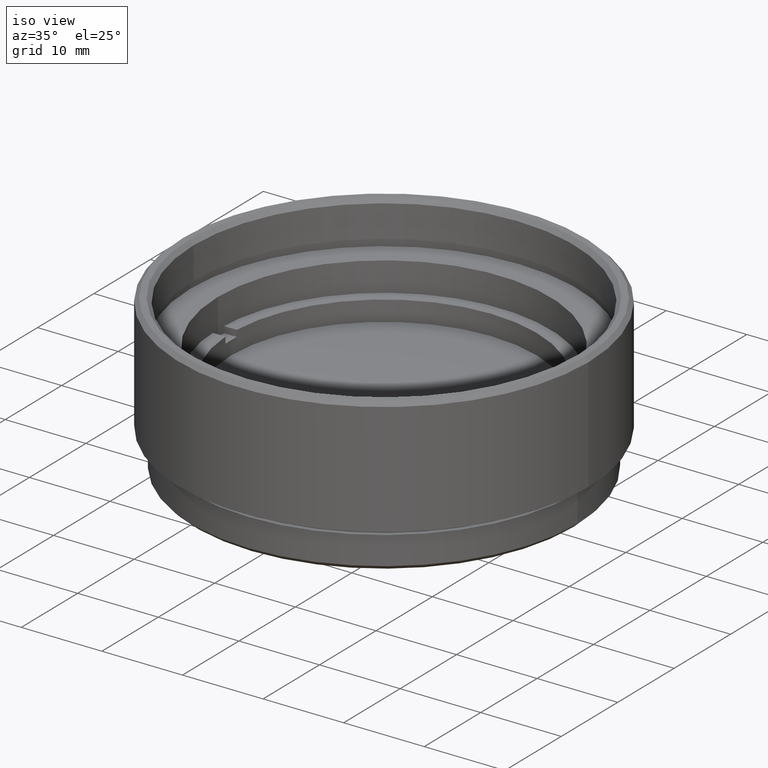
[diagram: clean part render]
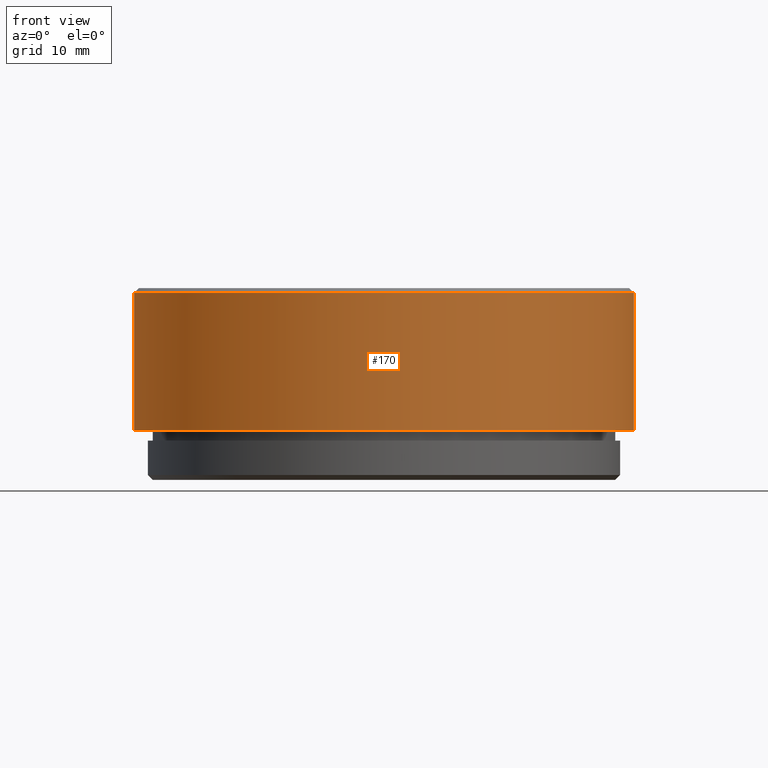
[diagram: tour spotlight — one face highlighted and labeled with its STEP entity id]
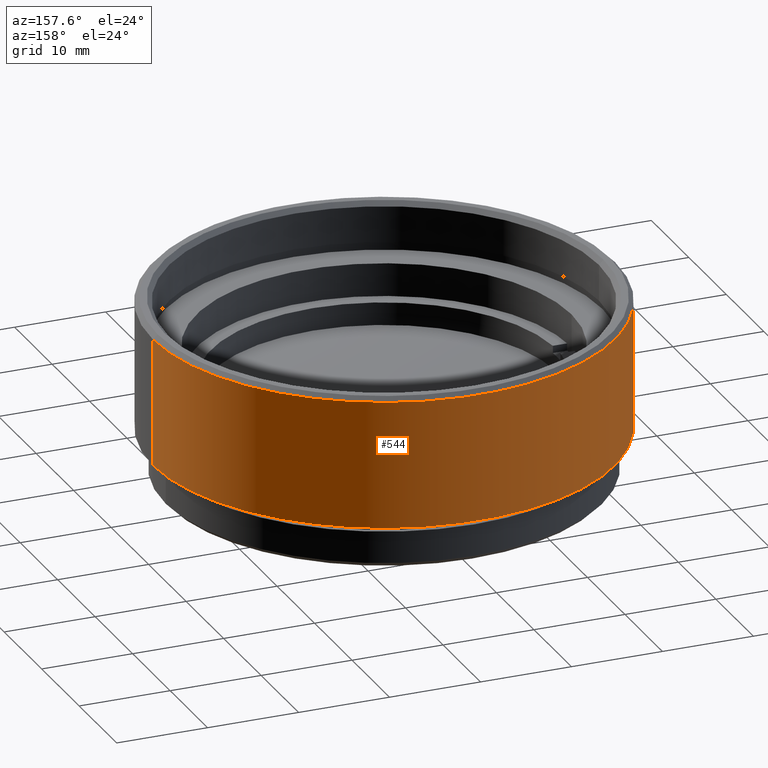
[diagram: tour spotlight — one face highlighted and labeled with its STEP entity id]
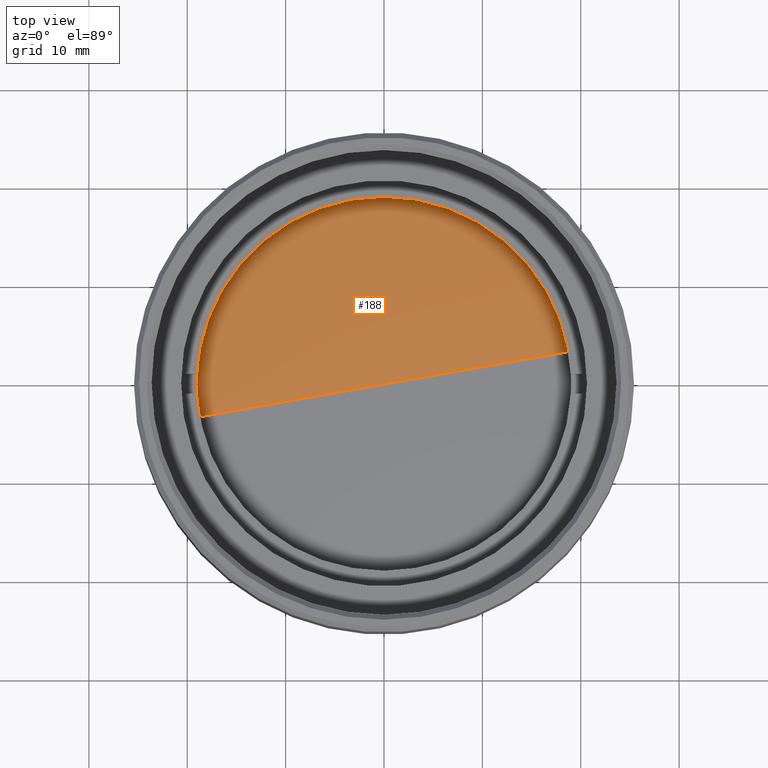
[diagram: tour spotlight — one face highlighted and labeled with its STEP entity id]
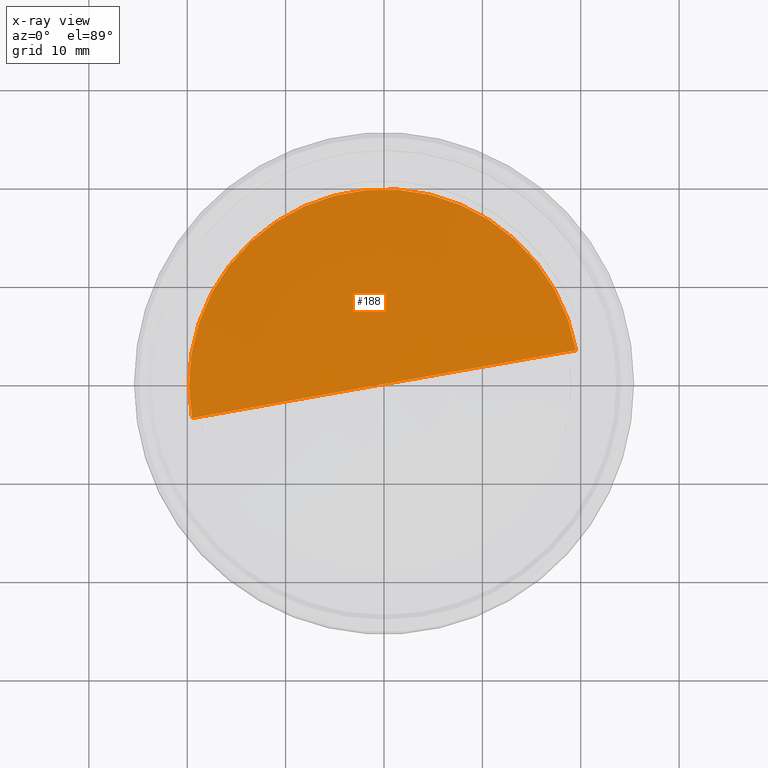
[diagram: x-ray of the same camera — body ghosted, this tour face saturated]
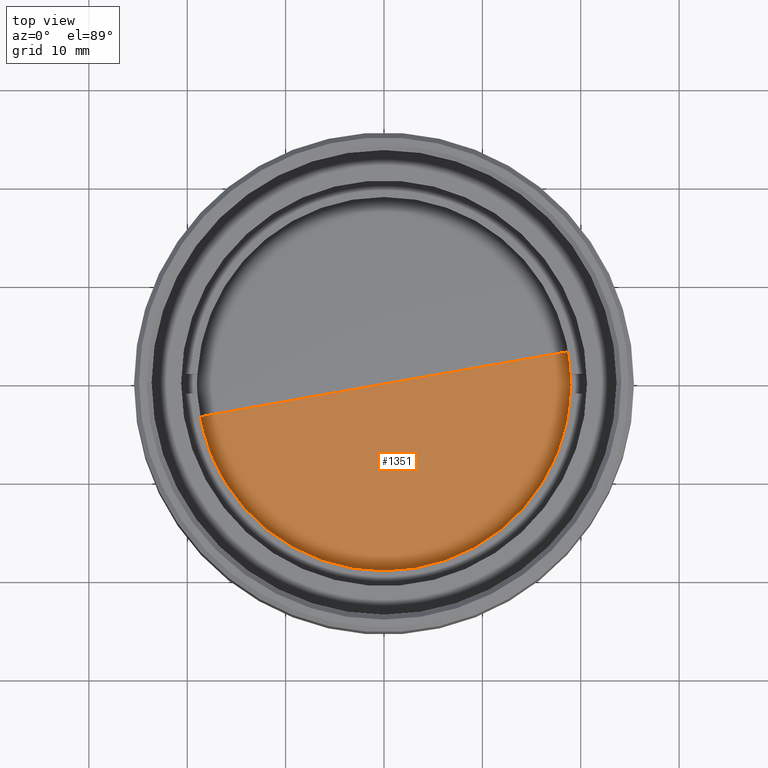
[diagram: tour spotlight — one face highlighted and labeled with its STEP entity id]
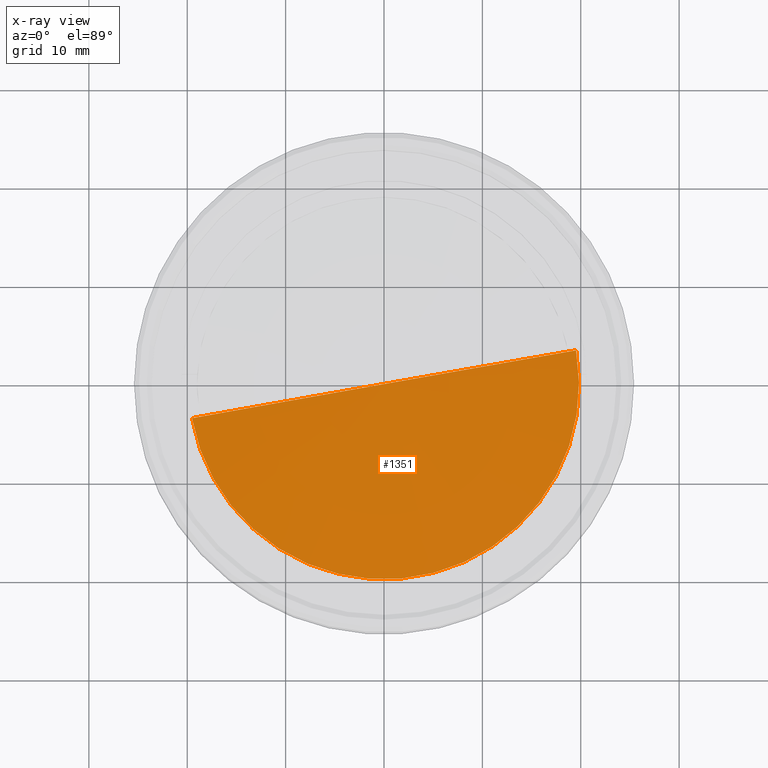
[diagram: x-ray of the same camera — body ghosted, this tour face saturated]
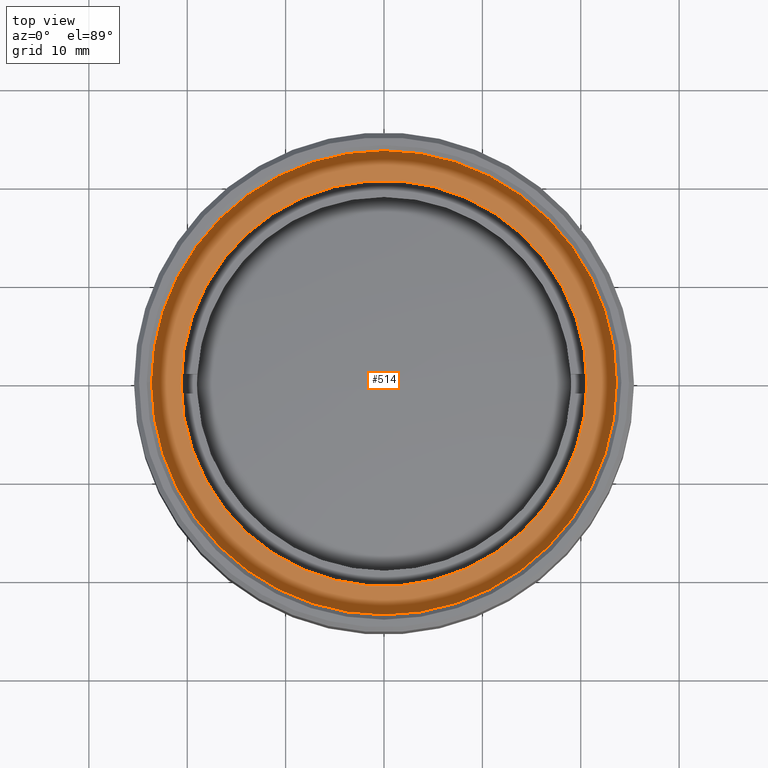
[diagram: tour spotlight — one face highlighted and labeled with its STEP entity id]
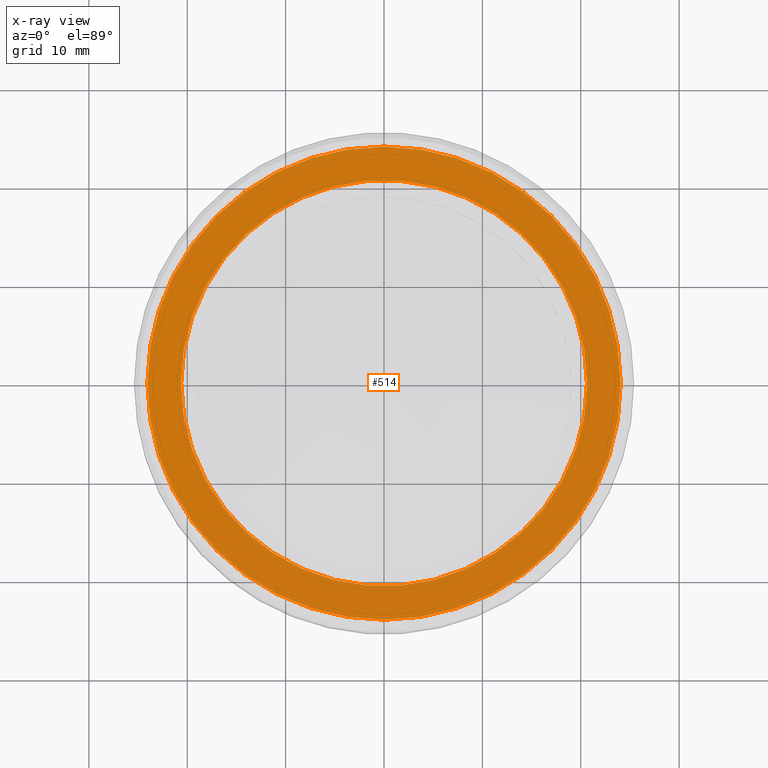
[diagram: x-ray of the same camera — body ghosted, this tour face saturated]
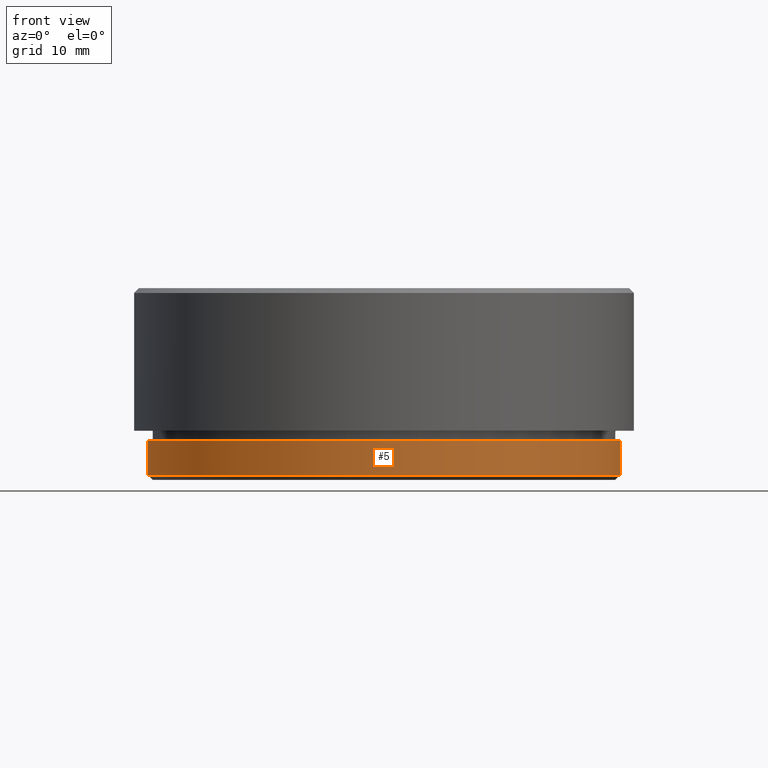
[diagram: tour spotlight — one face highlighted and labeled with its STEP entity id]
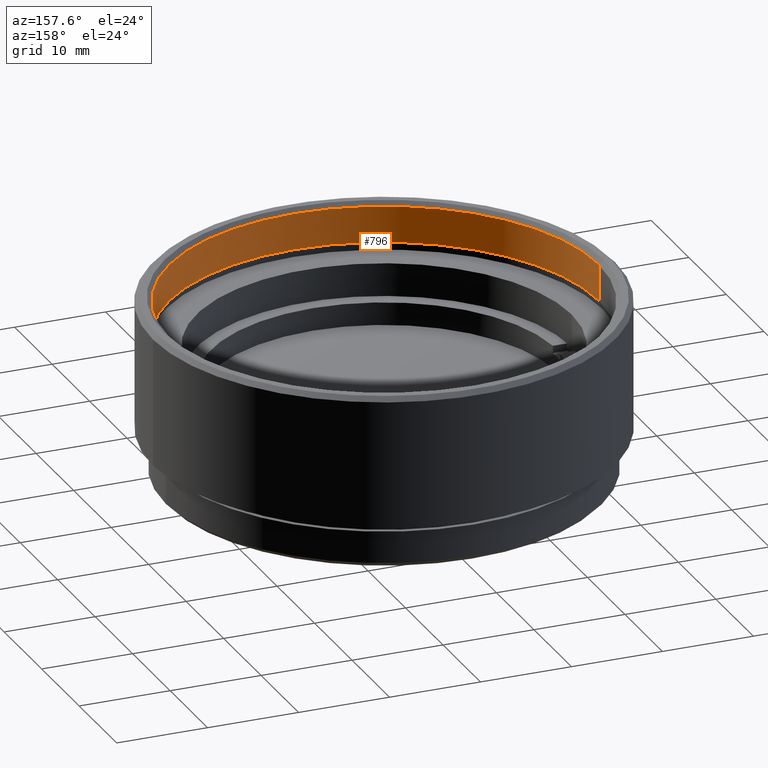
[diagram: tour spotlight — one face highlighted and labeled with its STEP entity id]
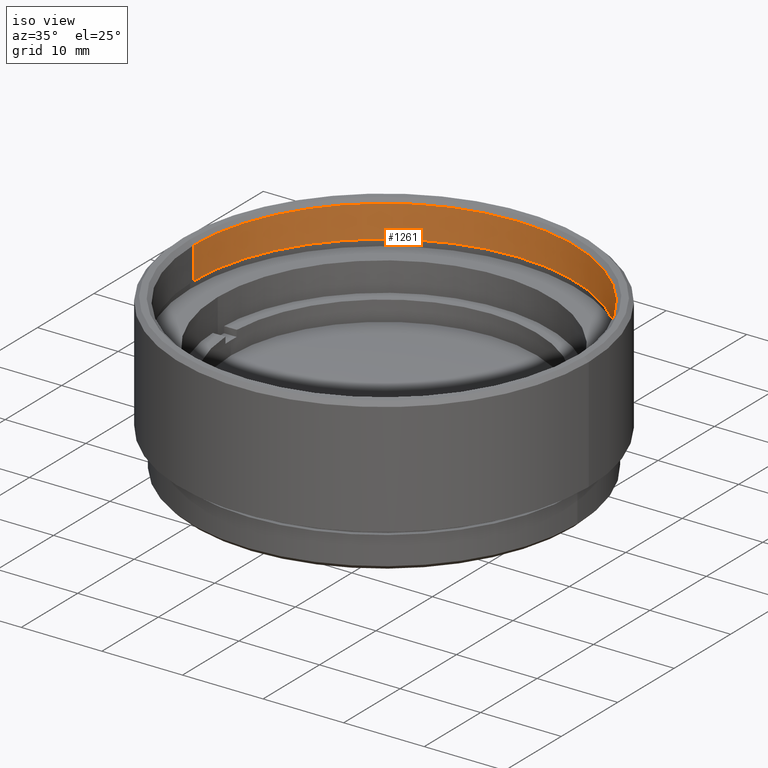
[diagram: tour spotlight — one face highlighted and labeled with its STEP entity id]
A machine part: a face-by-face anatomy tour. The part has 64 B-rep faces; the first image is the clean iso view, then the 8 largest visible faces are spotlighted one at a time (largest first), each with its STEP entity span.

Face 1 — front view, entity #170. In plain terms, the highlighted cylindrical surface (partial cylindrical patch) has radius 25.4 mm, axis along (-0, -0, -1).
Definition (entity closure, byte-faithful):
#59 = CARTESIAN_POINT ( 'NONE',  ( -25.39999999999999858, 0.000000000000000000, 18.99999999999998579 ) ) ;
#115 = DIRECTION ( 'NONE',  ( -1.000000000000000000, 0.000000000000000000, 0.000000000000000000 ) ) ;
#136 = AXIS2_PLACEMENT_3D ( 'NONE', #983, #699, #386 ) ;
#137 = CARTESIAN_POINT ( 'NONE',  ( -25.39999999999999858, 0.000000000000000000, 19.50000000000000000 ) ) ;
#170 = ADVANCED_FACE ( 'NONE', ( #1731 ), #829, .T. ) ;
#214 = CARTESIAN_POINT ( 'NONE',  ( 25.39999999999999858, 3.110602869834276865E-15, 19.50000000000000000 ) ) ;
#241 = CARTESIAN_POINT ( 'NONE',  ( -25.39999999999999858, 0.000000000000000000, 5.000000000000000000 ) ) ;
#264 = CIRCLE ( 'NONE', #1343, 25.39999999999999858 ) ;
#272 = DIRECTION ( 'NONE',  ( 1.000000000000000000, 0.000000000000000000, 0.000000000000000000 ) ) ;
#280 = DIRECTION ( 'NONE',  ( 0.000000000000000000, 0.000000000000000000, -1.000000000000000000 ) ) ;
#297 = EDGE_CURVE ( 'NONE', #847, #683, #1483, .T. ) ;
#386 = DIRECTION ( 'NONE',  ( -1.000000000000000000, 0.000000000000000000, 0.000000000000000000 ) ) ;
#511 = LINE ( 'NONE', #214, #1748 ) ;
#579 = EDGE_CURVE ( 'NONE', #1462, #847, #511, .T. ) ;
#584 = VECTOR ( 'NONE', #1901, 1000.000000000000000 ) ;
#619 = DIRECTION ( 'NONE',  ( -0.000000000000000000, -0.000000000000000000, -1.000000000000000000 ) ) ;
#681 = CARTESIAN_POINT ( 'NONE',  ( 0.000000000000000000, 0.000000000000000000, 18.99999999999998579 ) ) ;
#683 = VERTEX_POINT ( 'NONE', #241 ) ;
#699 = DIRECTION ( 'NONE',  ( -0.000000000000000000, -0.000000000000000000, -1.000000000000000000 ) ) ;
#740 = ORIENTED_EDGE ( 'NONE', *, *, #579, .F. ) ;
#829 = CYLINDRICAL_SURFACE ( 'NONE', #136, 25.39999999999999858 ) ;
#847 = VERTEX_POINT ( 'NONE', #1004 ) ;
#911 = AXIS2_PLACEMENT_3D ( 'NONE', #1439, #280, #115 ) ;
#976 = EDGE_CURVE ( 'NONE', #1462, #1438, #264, .T. ) ;
#983 = CARTESIAN_POINT ( 'NONE',  ( 0.000000000000000000, 0.000000000000000000, 19.50000000000000000 ) ) ;
#1004 = CARTESIAN_POINT ( 'NONE',  ( 25.39999999999999858, 3.110602869834276865E-15, 5.000000000000000000 ) ) ;
#1169 = LINE ( 'NONE', #137, #584 ) ;
#1241 = CARTESIAN_POINT ( 'NONE',  ( 25.39999999999999858, 3.110602869834276865E-15, 18.99999999999998579 ) ) ;
#1326 = ORIENTED_EDGE ( 'NONE', *, *, #297, .F. ) ;
#1343 = AXIS2_PLACEMENT_3D ( 'NONE', #681, #1428, #272 ) ;
#1428 = DIRECTION ( 'NONE',  ( 0.000000000000000000, 0.000000000000000000, -1.000000000000000000 ) ) ;
#1438 = VERTEX_POINT ( 'NONE', #59 ) ;
#1439 = CARTESIAN_POINT ( 'NONE',  ( 0.000000000000000000, 0.000000000000000000, 5.000000000000000000 ) ) ;
#1462 = VERTEX_POINT ( 'NONE', #1241 ) ;
#1483 = CIRCLE ( 'NONE', #911, 25.39999999999999858 ) ;
#1654 = ORIENTED_EDGE ( 'NONE', *, *, #976, .T. ) ;
#1665 = EDGE_CURVE ( 'NONE', #1438, #683, #1169, .T. ) ;
#1731 = FACE_OUTER_BOUND ( 'NONE', #1811, .T. ) ;
#1748 = VECTOR ( 'NONE', #619, 1000.000000000000000 ) ;
#1790 = ORIENTED_EDGE ( 'NONE', *, *, #1665, .T. ) ;
#1811 = EDGE_LOOP ( 'NONE', ( #740, #1654, #1790, #1326 ) ) ;
#1901 = DIRECTION ( 'NONE',  ( -0.000000000000000000, -0.000000000000000000, -1.000000000000000000 ) ) ;

Face 2 — auxiliary view, entity #544. In plain terms, the highlighted cylindrical surface (partial cylindrical patch) has radius 25.4 mm, axis along (-0, -0, -1).
Definition (entity closure, byte-faithful):
#3 = DIRECTION ( 'NONE',  ( -1.000000000000000000, 0.000000000000000000, 0.000000000000000000 ) ) ;
#59 = CARTESIAN_POINT ( 'NONE',  ( -25.39999999999999858, 0.000000000000000000, 18.99999999999998579 ) ) ;
#72 = CARTESIAN_POINT ( 'NONE',  ( 0.000000000000000000, 0.000000000000000000, 19.50000000000000000 ) ) ;
#128 = DIRECTION ( 'NONE',  ( 1.000000000000000000, 0.000000000000000000, 0.000000000000000000 ) ) ;
#137 = CARTESIAN_POINT ( 'NONE',  ( -25.39999999999999858, 0.000000000000000000, 19.50000000000000000 ) ) ;
#214 = CARTESIAN_POINT ( 'NONE',  ( 25.39999999999999858, 3.110602869834276865E-15, 19.50000000000000000 ) ) ;
#241 = CARTESIAN_POINT ( 'NONE',  ( -25.39999999999999858, 0.000000000000000000, 5.000000000000000000 ) ) ;
#345 = CYLINDRICAL_SURFACE ( 'NONE', #1904, 25.39999999999999858 ) ;
#384 = EDGE_CURVE ( 'NONE', #683, #847, #1394, .T. ) ;
#435 = AXIS2_PLACEMENT_3D ( 'NONE', #1638, #1452, #128 ) ;
#511 = LINE ( 'NONE', #214, #1748 ) ;
#522 = CIRCLE ( 'NONE', #435, 25.39999999999999858 ) ;
#544 = ADVANCED_FACE ( 'NONE', ( #1229 ), #345, .T. ) ;
#553 = AXIS2_PLACEMENT_3D ( 'NONE', #573, #1500, #3 ) ;
#573 = CARTESIAN_POINT ( 'NONE',  ( 0.000000000000000000, 0.000000000000000000, 5.000000000000000000 ) ) ;
#579 = EDGE_CURVE ( 'NONE', #1462, #847, #511, .T. ) ;
#584 = VECTOR ( 'NONE', #1901, 1000.000000000000000 ) ;
#619 = DIRECTION ( 'NONE',  ( -0.000000000000000000, -0.000000000000000000, -1.000000000000000000 ) ) ;
#683 = VERTEX_POINT ( 'NONE', #241 ) ;
#847 = VERTEX_POINT ( 'NONE', #1004 ) ;
#857 = ORIENTED_EDGE ( 'NONE', *, *, #579, .T. ) ;
#893 = ORIENTED_EDGE ( 'NONE', *, *, #1665, .F. ) ;
#1004 = CARTESIAN_POINT ( 'NONE',  ( 25.39999999999999858, 3.110602869834276865E-15, 5.000000000000000000 ) ) ;
#1072 = ORIENTED_EDGE ( 'NONE', *, *, #384, .F. ) ;
#1113 = EDGE_LOOP ( 'NONE', ( #1288, #857, #1072, #893 ) ) ;
#1169 = LINE ( 'NONE', #137, #584 ) ;
#1229 = FACE_OUTER_BOUND ( 'NONE', #1113, .T. ) ;
#1241 = CARTESIAN_POINT ( 'NONE',  ( 25.39999999999999858, 3.110602869834276865E-15, 18.99999999999998579 ) ) ;
#1288 = ORIENTED_EDGE ( 'NONE', *, *, #1694, .T. ) ;
#1394 = CIRCLE ( 'NONE', #553, 25.39999999999999858 ) ;
#1407 = DIRECTION ( 'NONE',  ( -0.000000000000000000, -0.000000000000000000, -1.000000000000000000 ) ) ;
#1438 = VERTEX_POINT ( 'NONE', #59 ) ;
#1452 = DIRECTION ( 'NONE',  ( 0.000000000000000000, 0.000000000000000000, -1.000000000000000000 ) ) ;
#1462 = VERTEX_POINT ( 'NONE', #1241 ) ;
#1500 = DIRECTION ( 'NONE',  ( 0.000000000000000000, 0.000000000000000000, -1.000000000000000000 ) ) ;
#1638 = CARTESIAN_POINT ( 'NONE',  ( 0.000000000000000000, 0.000000000000000000, 18.99999999999998579 ) ) ;
#1665 = EDGE_CURVE ( 'NONE', #1438, #683, #1169, .T. ) ;
#1694 = EDGE_CURVE ( 'NONE', #1438, #1462, #522, .T. ) ;
#1748 = VECTOR ( 'NONE', #619, 1000.000000000000000 ) ;
#1826 = DIRECTION ( 'NONE',  ( -1.000000000000000000, 0.000000000000000000, 0.000000000000000000 ) ) ;
#1901 = DIRECTION ( 'NONE',  ( -0.000000000000000000, -0.000000000000000000, -1.000000000000000000 ) ) ;
#1904 = AXIS2_PLACEMENT_3D ( 'NONE', #72, #1407, #1826 ) ;

Face 3 — top view, entity #188. An x-ray twin of the same camera follows (body ghosted, this face saturated) — the face is partly hidden behind the body. In plain terms, the highlighted spherical surface has radius 154.612 mm.
Definition (entity closure, byte-faithful):
#32 = VERTEX_POINT ( 'NONE', #1355 ) ;
#63 = EDGE_LOOP ( 'NONE', ( #1234, #703 ) ) ;
#188 = ADVANCED_FACE ( 'NONE', ( #1597 ), #994, .T. ) ;
#269 = CARTESIAN_POINT ( 'NONE',  ( 0.000000000000000000, 0.000000000000000000, -154.6119999999999948 ) ) ;
#283 = CARTESIAN_POINT ( 'NONE',  ( -5.845353588867689921E-15, 0.000000000000000000, -1.276373619301496065 ) ) ;
#459 = CARTESIAN_POINT ( 'NONE',  ( 0.000000000000000000, 0.000000000000000000, -154.6119999999999948 ) ) ;
#559 = DIRECTION ( 'NONE',  ( -1.000000000000000000, 0.000000000000000000, 0.000000000000000000 ) ) ;
#583 = DIRECTION ( 'NONE',  ( -3.281211185494079469E-17, 0.000000000000000000, 1.000000000000000000 ) ) ;
#620 = CARTESIAN_POINT ( 'NONE',  ( 19.82564567520659793, 2.438617475005919449E-15, -1.276373619301496065 ) ) ;
#655 = AXIS2_PLACEMENT_3D ( 'NONE', #459, #747, #1647 ) ;
#703 = ORIENTED_EDGE ( 'NONE', *, *, #1141, .T. ) ;
#747 = DIRECTION ( 'NONE',  ( 0.000000000000000000, -1.000000000000000000, 0.000000000000000000 ) ) ;
#753 = AXIS2_PLACEMENT_3D ( 'NONE', #269, #1269, #559 ) ;
#843 = AXIS2_PLACEMENT_3D ( 'NONE', #283, #583, #856 ) ;
#856 = DIRECTION ( 'NONE',  ( -1.000000000000000000, 0.000000000000000000, -3.281211185494082550E-17 ) ) ;
#994 = SPHERICAL_SURFACE ( 'NONE', #753, 154.6119999999999948 ) ;
#1141 = EDGE_CURVE ( 'NONE', #1225, #32, #1384, .T. ) ;
#1225 = VERTEX_POINT ( 'NONE', #620 ) ;
#1234 = ORIENTED_EDGE ( 'NONE', *, *, #1260, .F. ) ;
#1260 = EDGE_CURVE ( 'NONE', #1225, #32, #1446, .T. ) ;
#1269 = DIRECTION ( 'NONE',  ( 0.000000000000000000, -0.000000000000000000, 1.000000000000000000 ) ) ;
#1355 = CARTESIAN_POINT ( 'NONE',  ( -19.82564567520659793, 0.000000000000000000, -1.276373619301496065 ) ) ;
#1384 = CIRCLE ( 'NONE', #843, 19.82564567520659793 ) ;
#1446 = CIRCLE ( 'NONE', #655, 154.6119999999999948 ) ;
#1597 = FACE_OUTER_BOUND ( 'NONE', #63, .T. ) ;
#1647 = DIRECTION ( 'NONE',  ( 0.000000000000000000, 0.000000000000000000, -1.000000000000000000 ) ) ;

Face 4 — top view, entity #1351. An x-ray twin of the same camera follows (body ghosted, this face saturated) — the face is partly hidden behind the body. In plain terms, the highlighted spherical surface has radius 154.612 mm.
Definition (entity closure, byte-faithful):
#32 = VERTEX_POINT ( 'NONE', #1355 ) ;
#351 = DIRECTION ( 'NONE',  ( -1.000000000000000000, 0.000000000000000000, 0.000000000000000000 ) ) ;
#373 = CIRCLE ( 'NONE', #1800, 19.82564567520659793 ) ;
#459 = CARTESIAN_POINT ( 'NONE',  ( 0.000000000000000000, 0.000000000000000000, -154.6119999999999948 ) ) ;
#473 = ORIENTED_EDGE ( 'NONE', *, *, #518, .T. ) ;
#518 = EDGE_CURVE ( 'NONE', #32, #1225, #373, .T. ) ;
#620 = CARTESIAN_POINT ( 'NONE',  ( 19.82564567520659793, 2.438617475005919449E-15, -1.276373619301496065 ) ) ;
#631 = CARTESIAN_POINT ( 'NONE',  ( -5.845353588867689921E-15, 0.000000000000000000, -1.276373619301496065 ) ) ;
#654 = DIRECTION ( 'NONE',  ( -3.281211185494079469E-17, 0.000000000000000000, 1.000000000000000000 ) ) ;
#655 = AXIS2_PLACEMENT_3D ( 'NONE', #459, #747, #1647 ) ;
#747 = DIRECTION ( 'NONE',  ( 0.000000000000000000, -1.000000000000000000, 0.000000000000000000 ) ) ;
#760 = SPHERICAL_SURFACE ( 'NONE', #1184, 154.6119999999999948 ) ;
#1068 = DIRECTION ( 'NONE',  ( -1.000000000000000000, 0.000000000000000000, -3.281211185494082550E-17 ) ) ;
#1184 = AXIS2_PLACEMENT_3D ( 'NONE', #1226, #1822, #351 ) ;
#1225 = VERTEX_POINT ( 'NONE', #620 ) ;
#1226 = CARTESIAN_POINT ( 'NONE',  ( 0.000000000000000000, 0.000000000000000000, -154.6119999999999948 ) ) ;
#1260 = EDGE_CURVE ( 'NONE', #1225, #32, #1446, .T. ) ;
#1351 = ADVANCED_FACE ( 'NONE', ( #1400 ), #760, .T. ) ;
#1355 = CARTESIAN_POINT ( 'NONE',  ( -19.82564567520659793, 0.000000000000000000, -1.276373619301496065 ) ) ;
#1380 = ORIENTED_EDGE ( 'NONE', *, *, #1260, .T. ) ;
#1400 = FACE_OUTER_BOUND ( 'NONE', #1642, .T. ) ;
#1446 = CIRCLE ( 'NONE', #655, 154.6119999999999948 ) ;
#1642 = EDGE_LOOP ( 'NONE', ( #473, #1380 ) ) ;
#1647 = DIRECTION ( 'NONE',  ( 0.000000000000000000, 0.000000000000000000, -1.000000000000000000 ) ) ;
#1800 = AXIS2_PLACEMENT_3D ( 'NONE', #631, #654, #1068 ) ;
#1822 = DIRECTION ( 'NONE',  ( 0.000000000000000000, -0.000000000000000000, 1.000000000000000000 ) ) ;

Face 5 — top view, entity #514. An x-ray twin of the same camera follows (body ghosted, this face saturated) — the face is partly hidden behind the body. In plain terms, the highlighted planar face has unit normal (0, 0, 1).
Definition (entity closure, byte-faithful):
#7 = EDGE_LOOP ( 'NONE', ( #171, #147 ) ) ;
#30 = EDGE_CURVE ( 'NONE', #704, #1194, #1685, .T. ) ;
#52 = EDGE_CURVE ( 'NONE', #312, #1763, #933, .T. ) ;
#55 = PLANE ( 'NONE',  #565 ) ;
#147 = ORIENTED_EDGE ( 'NONE', *, *, #52, .T. ) ;
#151 = DIRECTION ( 'NONE',  ( 1.000000000000000000, 0.000000000000000000, 0.000000000000000000 ) ) ;
#171 = ORIENTED_EDGE ( 'NONE', *, *, #532, .T. ) ;
#205 = DIRECTION ( 'NONE',  ( 0.000000000000000000, 0.000000000000000000, 1.000000000000000000 ) ) ;
#312 = VERTEX_POINT ( 'NONE', #659 ) ;
#317 = AXIS2_PLACEMENT_3D ( 'NONE', #1389, #1705, #792 ) ;
#381 = CARTESIAN_POINT ( 'NONE',  ( -20.62500000000000000, 2.525834023241415981E-15, 14.00000000000000000 ) ) ;
#396 = ORIENTED_EDGE ( 'NONE', *, *, #30, .T. ) ;
#448 = DIRECTION ( 'NONE',  ( -0.000000000000000000, -0.000000000000000000, -1.000000000000000000 ) ) ;
#452 = CARTESIAN_POINT ( 'NONE',  ( 0.000000000000000000, 0.000000000000000000, 14.00000000000000000 ) ) ;
#514 = ADVANCED_FACE ( 'NONE', ( #1816, #916 ), #55, .T. ) ;
#532 = EDGE_CURVE ( 'NONE', #1763, #312, #1469, .T. ) ;
#545 = DIRECTION ( 'NONE',  ( 1.000000000000000000, 0.000000000000000000, 0.000000000000000000 ) ) ;
#565 = AXIS2_PLACEMENT_3D ( 'NONE', #800, #205, #783 ) ;
#593 = CARTESIAN_POINT ( 'NONE',  ( 20.62500000000000000, 0.000000000000000000, 14.00000000000000000 ) ) ;
#659 = CARTESIAN_POINT ( 'NONE',  ( 24.05000000000000071, 2.945275551949384573E-15, 14.00000000000000000 ) ) ;
#704 = VERTEX_POINT ( 'NONE', #381 ) ;
#783 = DIRECTION ( 'NONE',  ( 1.000000000000000000, 0.000000000000000000, -0.000000000000000000 ) ) ;
#792 = DIRECTION ( 'NONE',  ( 1.000000000000000000, 0.000000000000000000, 0.000000000000000000 ) ) ;
#800 = CARTESIAN_POINT ( 'NONE',  ( 0.000000000000000000, 0.000000000000000000, 14.00000000000000000 ) ) ;
#868 = CARTESIAN_POINT ( 'NONE',  ( 0.000000000000000000, 0.000000000000000000, 14.00000000000000000 ) ) ;
#873 = AXIS2_PLACEMENT_3D ( 'NONE', #452, #1171, #151 ) ;
#916 = FACE_OUTER_BOUND ( 'NONE', #7, .T. ) ;
#933 = CIRCLE ( 'NONE', #1187, 24.05000000000000071 ) ;
#1070 = ORIENTED_EDGE ( 'NONE', *, *, #1115, .T. ) ;
#1115 = EDGE_CURVE ( 'NONE', #1194, #704, #1604, .T. ) ;
#1171 = DIRECTION ( 'NONE',  ( -0.000000000000000000, -0.000000000000000000, -1.000000000000000000 ) ) ;
#1187 = AXIS2_PLACEMENT_3D ( 'NONE', #868, #1311, #545 ) ;
#1194 = VERTEX_POINT ( 'NONE', #593 ) ;
#1197 = DIRECTION ( 'NONE',  ( 1.000000000000000000, 0.000000000000000000, 0.000000000000000000 ) ) ;
#1311 = DIRECTION ( 'NONE',  ( 0.000000000000000000, 0.000000000000000000, 1.000000000000000000 ) ) ;
#1389 = CARTESIAN_POINT ( 'NONE',  ( 0.000000000000000000, 0.000000000000000000, 14.00000000000000000 ) ) ;
#1469 = CIRCLE ( 'NONE', #317, 24.05000000000000071 ) ;
#1604 = CIRCLE ( 'NONE', #873, 20.62500000000000000 ) ;
#1611 = EDGE_LOOP ( 'NONE', ( #1070, #396 ) ) ;
#1685 = CIRCLE ( 'NONE', #1874, 20.62500000000000000 ) ;
#1705 = DIRECTION ( 'NONE',  ( 0.000000000000000000, 0.000000000000000000, 1.000000000000000000 ) ) ;
#1761 = CARTESIAN_POINT ( 'NONE',  ( -24.05000000000000071, 0.000000000000000000, 14.00000000000000000 ) ) ;
#1763 = VERTEX_POINT ( 'NONE', #1761 ) ;
#1784 = CARTESIAN_POINT ( 'NONE',  ( 0.000000000000000000, 0.000000000000000000, 14.00000000000000000 ) ) ;
#1816 = FACE_BOUND ( 'NONE', #1611, .T. ) ;
#1874 = AXIS2_PLACEMENT_3D ( 'NONE', #1784, #448, #1197 ) ;

Face 6 — front view, entity #5. In plain terms, the highlighted cylindrical surface (partial cylindrical patch) has radius 24 mm, axis along (-0, -0, -1).
Definition (entity closure, byte-faithful):
#5 = ADVANCED_FACE ( 'NONE', ( #913 ), #440, .T. ) ;
#26 = DIRECTION ( 'NONE',  ( -1.000000000000000000, 0.000000000000000000, 0.000000000000000000 ) ) ;
#37 = CIRCLE ( 'NONE', #761, 24.00000000000000355 ) ;
#307 = DIRECTION ( 'NONE',  ( 1.000000000000000000, 0.000000000000000000, 0.000000000000000000 ) ) ;
#335 = DIRECTION ( 'NONE',  ( -1.000000000000000000, 0.000000000000000000, 0.000000000000000000 ) ) ;
#416 = ORIENTED_EDGE ( 'NONE', *, *, #520, .T. ) ;
#426 = CARTESIAN_POINT ( 'NONE',  ( 0.000000000000000000, 0.000000000000000000, 0.4999999999999935052 ) ) ;
#433 = EDGE_CURVE ( 'NONE', #1060, #1659, #1036, .T. ) ;
#440 = CYLINDRICAL_SURFACE ( 'NONE', #588, 24.00000000000000355 ) ;
#509 = VERTEX_POINT ( 'NONE', #746 ) ;
#520 = EDGE_CURVE ( 'NONE', #1060, #1540, #861, .T. ) ;
#568 = DIRECTION ( 'NONE',  ( -0.000000000000000000, -0.000000000000000000, -1.000000000000000000 ) ) ;
#588 = AXIS2_PLACEMENT_3D ( 'NONE', #1029, #1335, #26 ) ;
#591 = DIRECTION ( 'NONE',  ( -0.000000000000000000, -0.000000000000000000, -1.000000000000000000 ) ) ;
#599 = LINE ( 'NONE', #1909, #705 ) ;
#705 = VECTOR ( 'NONE', #568, 1000.000000000000000 ) ;
#746 = CARTESIAN_POINT ( 'NONE',  ( -24.00000000000000355, 0.000000000000000000, 0.4999999999999935052 ) ) ;
#751 = EDGE_LOOP ( 'NONE', ( #1649, #416, #1706, #1214 ) ) ;
#761 = AXIS2_PLACEMENT_3D ( 'NONE', #426, #1016, #307 ) ;
#861 = CIRCLE ( 'NONE', #1645, 24.00000000000000355 ) ;
#864 = CARTESIAN_POINT ( 'NONE',  ( 24.00000000000000355, 2.939152317953648289E-15, 4.000000000000000000 ) ) ;
#913 = FACE_OUTER_BOUND ( 'NONE', #751, .T. ) ;
#1016 = DIRECTION ( 'NONE',  ( 0.000000000000000000, 0.000000000000000000, 1.000000000000000000 ) ) ;
#1029 = CARTESIAN_POINT ( 'NONE',  ( 0.000000000000000000, 0.000000000000000000, 5.000000000000000000 ) ) ;
#1036 = LINE ( 'NONE', #1652, #1074 ) ;
#1060 = VERTEX_POINT ( 'NONE', #864 ) ;
#1074 = VECTOR ( 'NONE', #591, 1000.000000000000000 ) ;
#1214 = ORIENTED_EDGE ( 'NONE', *, *, #1768, .T. ) ;
#1255 = DIRECTION ( 'NONE',  ( 0.000000000000000000, 0.000000000000000000, -1.000000000000000000 ) ) ;
#1335 = DIRECTION ( 'NONE',  ( -0.000000000000000000, -0.000000000000000000, -1.000000000000000000 ) ) ;
#1368 = CARTESIAN_POINT ( 'NONE',  ( 0.000000000000000000, 0.000000000000000000, 4.000000000000000000 ) ) ;
#1540 = VERTEX_POINT ( 'NONE', #1844 ) ;
#1587 = CARTESIAN_POINT ( 'NONE',  ( 24.00000000000000355, 2.939152317953648289E-15, 0.4999999999999935052 ) ) ;
#1645 = AXIS2_PLACEMENT_3D ( 'NONE', #1368, #1255, #335 ) ;
#1649 = ORIENTED_EDGE ( 'NONE', *, *, #433, .F. ) ;
#1652 = CARTESIAN_POINT ( 'NONE',  ( 24.00000000000000355, 2.939152317953648289E-15, 5.000000000000000000 ) ) ;
#1659 = VERTEX_POINT ( 'NONE', #1587 ) ;
#1706 = ORIENTED_EDGE ( 'NONE', *, *, #1765, .T. ) ;
#1765 = EDGE_CURVE ( 'NONE', #1540, #509, #599, .T. ) ;
#1768 = EDGE_CURVE ( 'NONE', #509, #1659, #37, .T. ) ;
#1844 = CARTESIAN_POINT ( 'NONE',  ( -24.00000000000000355, 0.000000000000000000, 4.000000000000000000 ) ) ;
#1909 = CARTESIAN_POINT ( 'NONE',  ( -24.00000000000000355, 0.000000000000000000, 5.000000000000000000 ) ) ;

Face 7 — auxiliary view, entity #796. In plain terms, the highlighted cylindrical surface (partial cylindrical patch) has radius 23.625 mm, axis along (0, 0, 1).
Definition (entity closure, byte-faithful):
#13 = DIRECTION ( 'NONE',  ( 1.000000000000000000, 0.000000000000000000, 0.000000000000000000 ) ) ;
#22 = CARTESIAN_POINT ( 'NONE',  ( 0.000000000000000000, 0.000000000000000000, 18.99999999999999289 ) ) ;
#183 = CIRCLE ( 'NONE', #1263, 23.62500000000000000 ) ;
#197 = VERTEX_POINT ( 'NONE', #1145 ) ;
#247 = LINE ( 'NONE', #1867, #1117 ) ;
#387 = CARTESIAN_POINT ( 'NONE',  ( 0.000000000000000000, 0.000000000000000000, 14.00000000000000000 ) ) ;
#413 = ORIENTED_EDGE ( 'NONE', *, *, #877, .F. ) ;
#428 = VERTEX_POINT ( 'NONE', #895 ) ;
#431 = EDGE_CURVE ( 'NONE', #197, #1267, #183, .T. ) ;
#539 = DIRECTION ( 'NONE',  ( -0.000000000000000000, -0.000000000000000000, 1.000000000000000000 ) ) ;
#628 = CARTESIAN_POINT ( 'NONE',  ( 23.62500000000000000, 0.000000000000000000, 18.99999999999999289 ) ) ;
#661 = ORIENTED_EDGE ( 'NONE', *, *, #1190, .T. ) ;
#713 = AXIS2_PLACEMENT_3D ( 'NONE', #387, #539, #971 ) ;
#796 = ADVANCED_FACE ( 'NONE', ( #1878 ), #1451, .F. ) ;
#811 = ORIENTED_EDGE ( 'NONE', *, *, #1676, .T. ) ;
#877 = EDGE_CURVE ( 'NONE', #197, #1892, #247, .T. ) ;
#895 = CARTESIAN_POINT ( 'NONE',  ( -23.62500000000000000, 2.893228062985622214E-15, 18.99999999999999289 ) ) ;
#960 = DIRECTION ( 'NONE',  ( -0.000000000000000000, -0.000000000000000000, 1.000000000000000000 ) ) ;
#971 = DIRECTION ( 'NONE',  ( 1.000000000000000000, 0.000000000000000000, 0.000000000000000000 ) ) ;
#1055 = DIRECTION ( 'NONE',  ( 1.000000000000000000, 0.000000000000000000, 0.000000000000000000 ) ) ;
#1093 = CARTESIAN_POINT ( 'NONE',  ( -23.62500000000000000, 2.893228062985622214E-15, 15.00000000000000000 ) ) ;
#1117 = VECTOR ( 'NONE', #960, 1000.000000000000000 ) ;
#1145 = CARTESIAN_POINT ( 'NONE',  ( 23.62500000000000000, 0.000000000000000000, 15.00000000000000000 ) ) ;
#1181 = VECTOR ( 'NONE', #1511, 1000.000000000000000 ) ;
#1190 = EDGE_CURVE ( 'NONE', #428, #1892, #1504, .T. ) ;
#1201 = CARTESIAN_POINT ( 'NONE',  ( 0.000000000000000000, 0.000000000000000000, 15.00000000000000000 ) ) ;
#1209 = CARTESIAN_POINT ( 'NONE',  ( -23.62500000000000000, 2.893228062985622214E-15, 14.00000000000000000 ) ) ;
#1263 = AXIS2_PLACEMENT_3D ( 'NONE', #1201, #1769, #1055 ) ;
#1267 = VERTEX_POINT ( 'NONE', #1093 ) ;
#1338 = DIRECTION ( 'NONE',  ( 0.000000000000000000, 0.000000000000000000, 1.000000000000000000 ) ) ;
#1402 = EDGE_LOOP ( 'NONE', ( #1897, #811, #661, #413 ) ) ;
#1451 = CYLINDRICAL_SURFACE ( 'NONE', #713, 23.62500000000000000 ) ;
#1504 = CIRCLE ( 'NONE', #1846, 23.62500000000000000 ) ;
#1511 = DIRECTION ( 'NONE',  ( -0.000000000000000000, -0.000000000000000000, 1.000000000000000000 ) ) ;
#1609 = LINE ( 'NONE', #1209, #1181 ) ;
#1676 = EDGE_CURVE ( 'NONE', #1267, #428, #1609, .T. ) ;
#1769 = DIRECTION ( 'NONE',  ( -0.000000000000000000, -0.000000000000000000, -1.000000000000000000 ) ) ;
#1846 = AXIS2_PLACEMENT_3D ( 'NONE', #22, #1338, #13 ) ;
#1867 = CARTESIAN_POINT ( 'NONE',  ( 23.62500000000000000, 0.000000000000000000, 14.00000000000000000 ) ) ;
#1878 = FACE_OUTER_BOUND ( 'NONE', #1402, .T. ) ;
#1892 = VERTEX_POINT ( 'NONE', #628 ) ;
#1897 = ORIENTED_EDGE ( 'NONE', *, *, #431, .T. ) ;

Face 8 — iso view, entity #1261. In plain terms, the highlighted cylindrical surface (partial cylindrical patch) has radius 23.625 mm, axis along (0, 0, 1).
Definition (entity closure, byte-faithful):
#197 = VERTEX_POINT ( 'NONE', #1145 ) ;
#247 = LINE ( 'NONE', #1867, #1117 ) ;
#284 = ORIENTED_EDGE ( 'NONE', *, *, #877, .T. ) ;
#328 = DIRECTION ( 'NONE',  ( 1.000000000000000000, 0.000000000000000000, 0.000000000000000000 ) ) ;
#337 = FACE_OUTER_BOUND ( 'NONE', #656, .T. ) ;
#428 = VERTEX_POINT ( 'NONE', #895 ) ;
#521 = DIRECTION ( 'NONE',  ( -0.000000000000000000, -0.000000000000000000, -1.000000000000000000 ) ) ;
#531 = CIRCLE ( 'NONE', #1839, 23.62500000000000000 ) ;
#561 = DIRECTION ( 'NONE',  ( 1.000000000000000000, 0.000000000000000000, 0.000000000000000000 ) ) ;
#628 = CARTESIAN_POINT ( 'NONE',  ( 23.62500000000000000, 0.000000000000000000, 18.99999999999999289 ) ) ;
#656 = EDGE_LOOP ( 'NONE', ( #1605, #1568, #284, #1138 ) ) ;
#816 = EDGE_CURVE ( 'NONE', #1892, #428, #531, .T. ) ;
#877 = EDGE_CURVE ( 'NONE', #197, #1892, #247, .T. ) ;
#895 = CARTESIAN_POINT ( 'NONE',  ( -23.62500000000000000, 2.893228062985622214E-15, 18.99999999999999289 ) ) ;
#960 = DIRECTION ( 'NONE',  ( -0.000000000000000000, -0.000000000000000000, 1.000000000000000000 ) ) ;
#1093 = CARTESIAN_POINT ( 'NONE',  ( -23.62500000000000000, 2.893228062985622214E-15, 15.00000000000000000 ) ) ;
#1097 = DIRECTION ( 'NONE',  ( 1.000000000000000000, 0.000000000000000000, 0.000000000000000000 ) ) ;
#1117 = VECTOR ( 'NONE', #960, 1000.000000000000000 ) ;
#1135 = DIRECTION ( 'NONE',  ( 0.000000000000000000, 0.000000000000000000, 1.000000000000000000 ) ) ;
#1138 = ORIENTED_EDGE ( 'NONE', *, *, #816, .T. ) ;
#1145 = CARTESIAN_POINT ( 'NONE',  ( 23.62500000000000000, 0.000000000000000000, 15.00000000000000000 ) ) ;
#1170 = AXIS2_PLACEMENT_3D ( 'NONE', #1228, #521, #1097 ) ;
#1181 = VECTOR ( 'NONE', #1511, 1000.000000000000000 ) ;
#1209 = CARTESIAN_POINT ( 'NONE',  ( -23.62500000000000000, 2.893228062985622214E-15, 14.00000000000000000 ) ) ;
#1228 = CARTESIAN_POINT ( 'NONE',  ( 0.000000000000000000, 0.000000000000000000, 15.00000000000000000 ) ) ;
#1261 = ADVANCED_FACE ( 'NONE', ( #337 ), #1360, .F. ) ;
#1267 = VERTEX_POINT ( 'NONE', #1093 ) ;
#1324 = CIRCLE ( 'NONE', #1170, 23.62500000000000000 ) ;
#1352 = AXIS2_PLACEMENT_3D ( 'NONE', #1514, #1653, #328 ) ;
#1360 = CYLINDRICAL_SURFACE ( 'NONE', #1352, 23.62500000000000000 ) ;
#1511 = DIRECTION ( 'NONE',  ( -0.000000000000000000, -0.000000000000000000, 1.000000000000000000 ) ) ;
#1514 = CARTESIAN_POINT ( 'NONE',  ( 0.000000000000000000, 0.000000000000000000, 14.00000000000000000 ) ) ;
#1568 = ORIENTED_EDGE ( 'NONE', *, *, #1886, .T. ) ;
#1576 = CARTESIAN_POINT ( 'NONE',  ( 0.000000000000000000, 0.000000000000000000, 18.99999999999999289 ) ) ;
#1605 = ORIENTED_EDGE ( 'NONE', *, *, #1676, .F. ) ;
#1609 = LINE ( 'NONE', #1209, #1181 ) ;
#1653 = DIRECTION ( 'NONE',  ( -0.000000000000000000, -0.000000000000000000, 1.000000000000000000 ) ) ;
#1676 = EDGE_CURVE ( 'NONE', #1267, #428, #1609, .T. ) ;
#1839 = AXIS2_PLACEMENT_3D ( 'NONE', #1576, #1135, #561 ) ;
#1867 = CARTESIAN_POINT ( 'NONE',  ( 23.62500000000000000, 0.000000000000000000, 14.00000000000000000 ) ) ;
#1886 = EDGE_CURVE ( 'NONE', #1267, #197, #1324, .T. ) ;
#1892 = VERTEX_POINT ( 'NONE', #628 ) ;